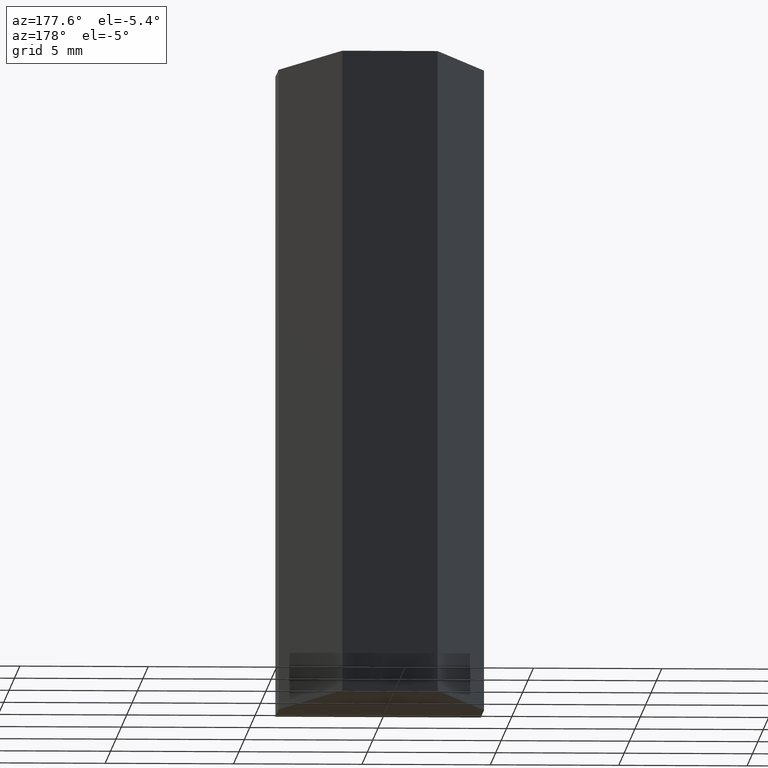
[diagram: clean part render]
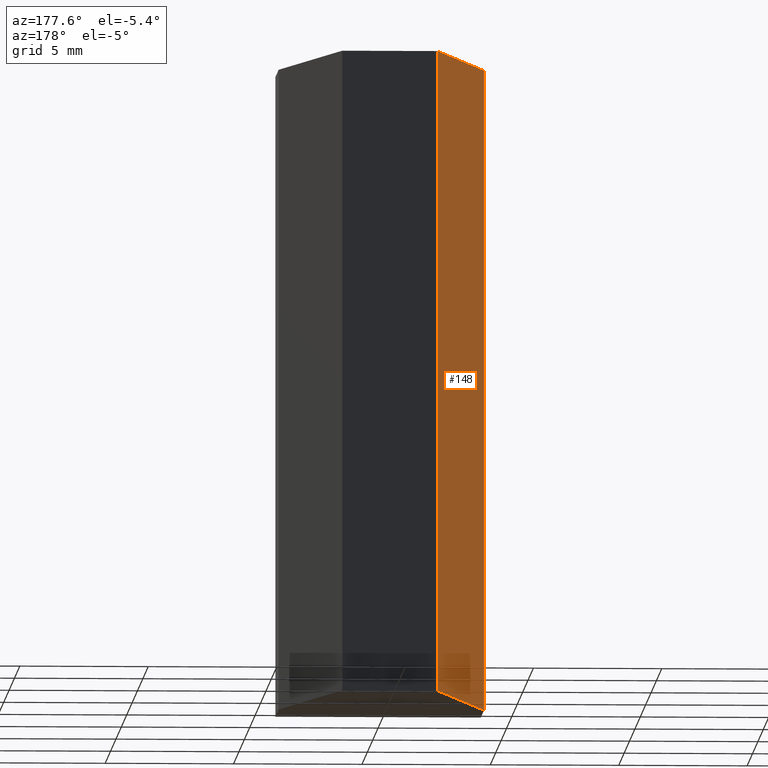
[diagram: same view with one face highlighted and labeled with its STEP entity id]
A machine part, auxiliary view. The second image highlights one B-rep face of the part: STEP entity #148.
In plain terms, the highlighted planar face has unit normal (-0.9659, 0.2588, 0).
Its self-contained STEP definition (entity closure, byte-faithful):
#22=FACE_OUTER_BOUND('',#30,.T.);
#30=EDGE_LOOP('',(#124,#125,#126,#127));
#32=LINE('',#221,#50);
#40=LINE('',#236,#58);
#48=LINE('',#252,#66);
#49=LINE('',#254,#67);
#50=VECTOR('',#185,10.);
#58=VECTOR('',#195,10.);
#66=VECTOR('',#211,10.);
#67=VECTOR('',#214,10.);
#68=VERTEX_POINT('',#219);
#69=VERTEX_POINT('',#220);
#74=VERTEX_POINT('',#232);
#79=VERTEX_POINT('',#250);
#80=EDGE_CURVE('',#68,#69,#32,.T.);
#88=EDGE_CURVE('',#68,#74,#40,.T.);
#96=EDGE_CURVE('',#69,#79,#48,.T.);
#97=EDGE_CURVE('',#79,#74,#49,.T.);
#124=ORIENTED_EDGE('',*,*,#97,.T.);
#125=ORIENTED_EDGE('',*,*,#88,.F.);
#126=ORIENTED_EDGE('',*,*,#80,.T.);
#127=ORIENTED_EDGE('',*,*,#96,.T.);
#140=PLANE('',#179);
#148=ADVANCED_FACE('',(#22),#140,.T.);
#179=AXIS2_PLACEMENT_3D('',#253,#212,#213);
#185=DIRECTION('',(-0.258819045102521,-0.965925826289068,0.));
#195=DIRECTION('',(0.,0.,1.));
#211=DIRECTION('',(0.,0.,1.));
#212=DIRECTION('center_axis',(-0.965925826289068,0.258819045102521,0.));
#213=DIRECTION('ref_axis',(0.,0.,1.));
#214=DIRECTION('',(0.258819045102521,0.965925826289068,0.));
#219=CARTESIAN_POINT('',(-1.85640646055102,11.,-12.5));
#220=CARTESIAN_POINT('',(-4.,3.,-12.5));
#221=CARTESIAN_POINT('',(-1.85640646055102,11.,-12.5));
#232=CARTESIAN_POINT('',(-1.85640646055102,11.,12.5));
#236=CARTESIAN_POINT('',(-1.85640646055102,11.,0.));
#250=CARTESIAN_POINT('',(-4.,3.,12.5));
#252=CARTESIAN_POINT('',(-4.,3.,0.));
#253=CARTESIAN_POINT('Origin',(-4.,3.,0.));
#254=CARTESIAN_POINT('',(-1.85640646055102,11.,12.5));